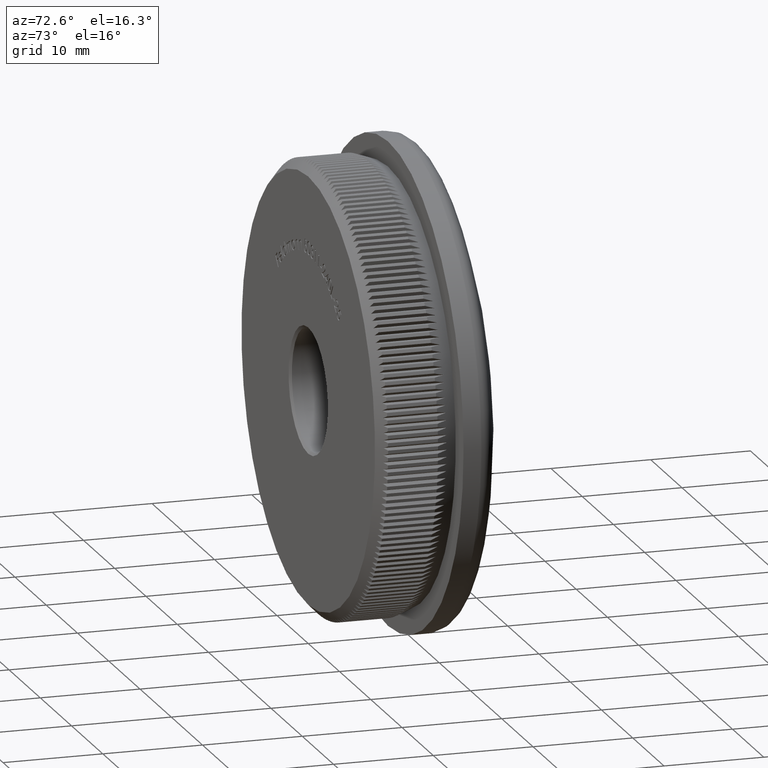
[diagram: clean part render]
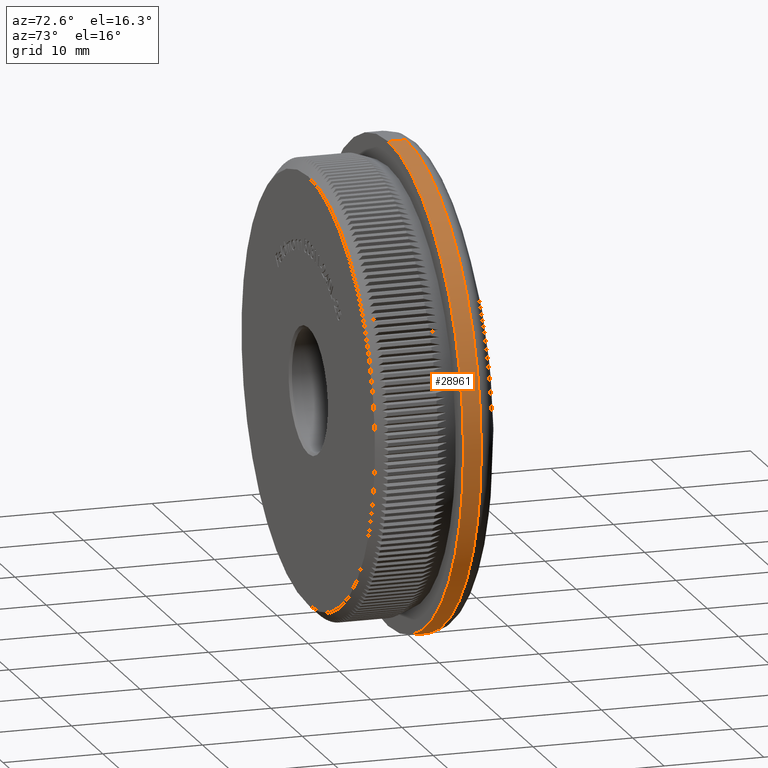
[diagram: same view with one face highlighted and labeled with its STEP entity id]
A machine part, auxiliary view. The second image highlights one B-rep face of the part: STEP entity #28961.
In plain terms, the highlighted cylindrical surface (partial cylindrical patch) has radius 24.15 mm, axis along (-0, -1, -0).
Its self-contained STEP definition (entity closure, byte-faithful):
#1697 = CIRCLE ( 'NONE', #20802, 24.15000000000000200 ) ;
#1839 = CARTESIAN_POINT ( 'NONE',  ( 2.957522019940858300E-015, 9.780020886796899400, 24.15000000000000200 ) ) ;
#3131 = DIRECTION ( 'NONE',  ( -0.0000000000000000000, -1.000000000000000000, -0.0000000000000000000 ) ) ;
#3224 = DIRECTION ( 'NONE',  ( -0.0000000000000000000, -1.000000000000000000, -0.0000000000000000000 ) ) ;
#4083 = DIRECTION ( 'NONE',  ( -0.0000000000000000000, -1.000000000000000000, -0.0000000000000000000 ) ) ;
#4978 = AXIS2_PLACEMENT_3D ( 'NONE', #7108, #4083, #20501 ) ;
#4989 = VECTOR ( 'NONE', #26765, 1000.000000000000000 ) ;
#5512 = CARTESIAN_POINT ( 'NONE',  ( 0.0000000000000000000, 0.0000000000000000000, -24.15000000000000200 ) ) ;
#6842 = CARTESIAN_POINT ( 'NONE',  ( 0.0000000000000000000, 8.000000000000000000, -24.14999999999999900 ) ) ;
#7108 = CARTESIAN_POINT ( 'NONE',  ( 0.0000000000000000000, 8.000000000000000000, 0.0000000000000000000 ) ) ;
#7357 = VERTEX_POINT ( 'NONE', #6842 ) ;
#8286 = VERTEX_POINT ( 'NONE', #1839 ) ;
#8486 = CARTESIAN_POINT ( 'NONE',  ( 0.0000000000000000000, 0.0000000000000000000, 0.0000000000000000000 ) ) ;
#8506 = CARTESIAN_POINT ( 'NONE',  ( 0.0000000000000000000, 9.780020886796899400, 0.0000000000000000000 ) ) ;
#8609 = ORIENTED_EDGE ( 'NONE', *, *, #29645, .T. ) ;
#10738 = CARTESIAN_POINT ( 'NONE',  ( 2.957522019940858300E-015, 8.000000000000000000, 24.14999999999999900 ) ) ;
#10814 = EDGE_CURVE ( 'NONE', #30174, #8286, #1697, .T. ) ;
#10952 = DIRECTION ( 'NONE',  ( 0.0000000000000000000, 0.0000000000000000000, -1.000000000000000000 ) ) ;
#12525 = LINE ( 'NONE', #5512, #4989 ) ;
#12580 = CIRCLE ( 'NONE', #4978, 24.14999999999999900 ) ;
#13786 = ORIENTED_EDGE ( 'NONE', *, *, #20748, .F. ) ;
#16680 = CARTESIAN_POINT ( 'NONE',  ( 0.0000000000000000000, 9.780020886796899400, -24.15000000000000200 ) ) ;
#17905 = EDGE_CURVE ( 'NONE', #7357, #30054, #12580, .T. ) ;
#20292 = CARTESIAN_POINT ( 'NONE',  ( 2.957522019940858300E-015, 0.0000000000000000000, 24.15000000000000200 ) ) ;
#20501 = DIRECTION ( 'NONE',  ( 0.0000000000000000000, 0.0000000000000000000, -1.000000000000000000 ) ) ;
#20748 = EDGE_CURVE ( 'NONE', #30174, #7357, #12525, .T. ) ;
#20763 = FACE_OUTER_BOUND ( 'NONE', #26955, .T. ) ;
#20802 = AXIS2_PLACEMENT_3D ( 'NONE', #8506, #3131, #10952 ) ;
#25265 = DIRECTION ( 'NONE',  ( -0.0000000000000000000, -1.000000000000000000, -0.0000000000000000000 ) ) ;
#26398 = ORIENTED_EDGE ( 'NONE', *, *, #17905, .F. ) ;
#26765 = DIRECTION ( 'NONE',  ( -0.0000000000000000000, -1.000000000000000000, -0.0000000000000000000 ) ) ;
#26955 = EDGE_LOOP ( 'NONE', ( #31263, #8609, #26398, #13786 ) ) ;
#27345 = VECTOR ( 'NONE', #25265, 1000.000000000000000 ) ;
#28961 = ADVANCED_FACE ( 'NONE', ( #20763 ), #33200, .T. ) ;
#29645 = EDGE_CURVE ( 'NONE', #8286, #30054, #33602, .T. ) ;
#30054 = VERTEX_POINT ( 'NONE', #10738 ) ;
#30174 = VERTEX_POINT ( 'NONE', #16680 ) ;
#31263 = ORIENTED_EDGE ( 'NONE', *, *, #10814, .T. ) ;
#32423 = DIRECTION ( 'NONE',  ( 0.0000000000000000000, 0.0000000000000000000, -1.000000000000000000 ) ) ;
#32774 = AXIS2_PLACEMENT_3D ( 'NONE', #8486, #3224, #32423 ) ;
#33200 = CYLINDRICAL_SURFACE ( 'NONE', #32774, 24.15000000000000200 ) ;
#33602 = LINE ( 'NONE', #20292, #27345 ) ;